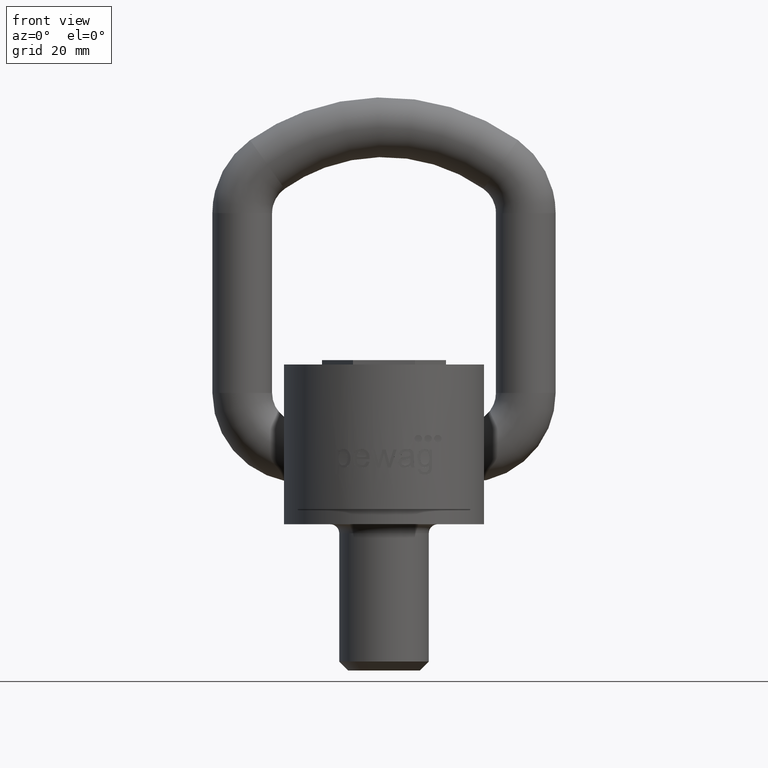
[diagram: clean part render]
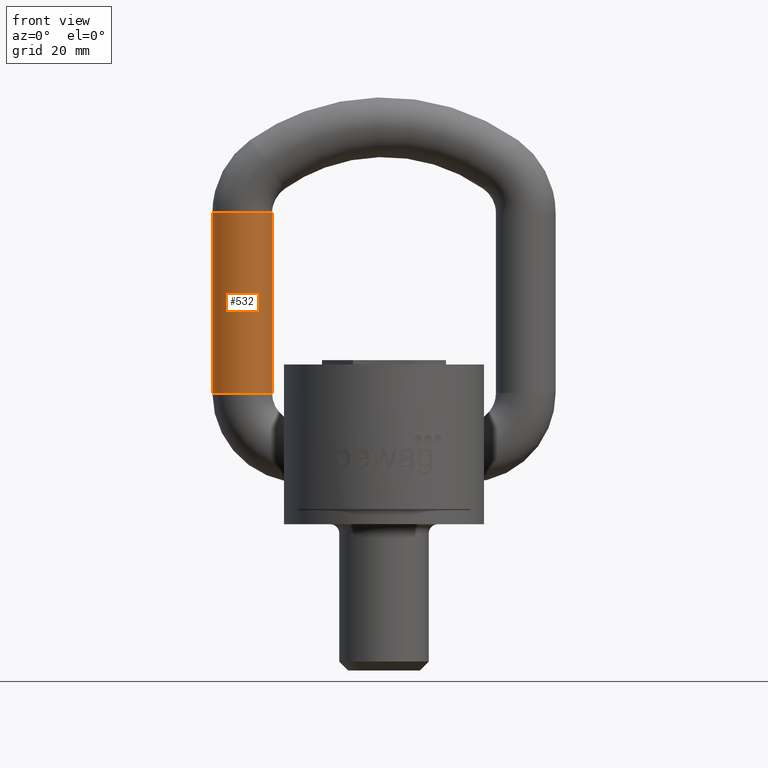
[diagram: same view with one face highlighted and labeled with its STEP entity id]
A machine part, front view. The second image highlights one B-rep face of the part: STEP entity #532.
In plain terms, the highlighted cylindrical surface (bore or boss wall) has radius 10 mm, axis along (0, 0, -1).
Its self-contained STEP definition (entity closure, byte-faithful):
#532=ADVANCED_FACE('',(#615,#616),#553,.T.);
#553=CYLINDRICAL_SURFACE('',#2585,10.);
#615=FACE_BOUND('',#779,.T.);
#616=FACE_BOUND('',#780,.T.);
#779=EDGE_LOOP('',(#1745));
#780=EDGE_LOOP('',(#1746));
#1128=CIRCLE('',#2582,10.);
#1129=CIRCLE('',#2584,10.);
#1745=ORIENTED_EDGE('',*,*,#2275,.T.);
#1746=ORIENTED_EDGE('',*,*,#2274,.F.);
#1963=VERTEX_POINT('',#5155);
#1964=VERTEX_POINT('',#5158);
#2274=EDGE_CURVE('',#1963,#1963,#1128,.T.);
#2275=EDGE_CURVE('',#1964,#1964,#1129,.T.);
#2582=AXIS2_PLACEMENT_3D('',#5154,#3026,#3027);
#2584=AXIS2_PLACEMENT_3D('',#5157,#3030,#3031);
#2585=AXIS2_PLACEMENT_3D('',#5159,#3032,#3033);
#3026=DIRECTION('',(-8.32667268468867E-16,0.,-1.));
#3027=DIRECTION('',(-1.,0.,6.93889390390723E-16));
#3030=DIRECTION('',(-8.32667268468867E-16,0.,-1.));
#3031=DIRECTION('',(-1.,0.,1.38777878078145E-15));
#3032=DIRECTION('',(0.,0.,-1.));
#3033=DIRECTION('',(-1.,0.,0.));
#5154=CARTESIAN_POINT('',(-47.5,33.,39.));
#5155=CARTESIAN_POINT('',(-57.5,33.,39.));
#5157=CARTESIAN_POINT('',(-47.5,33.,99.2298334620742));
#5158=CARTESIAN_POINT('',(-57.5,33.,99.2298334620742));
#5159=CARTESIAN_POINT('',(-47.5,33.,99.2298334620742));